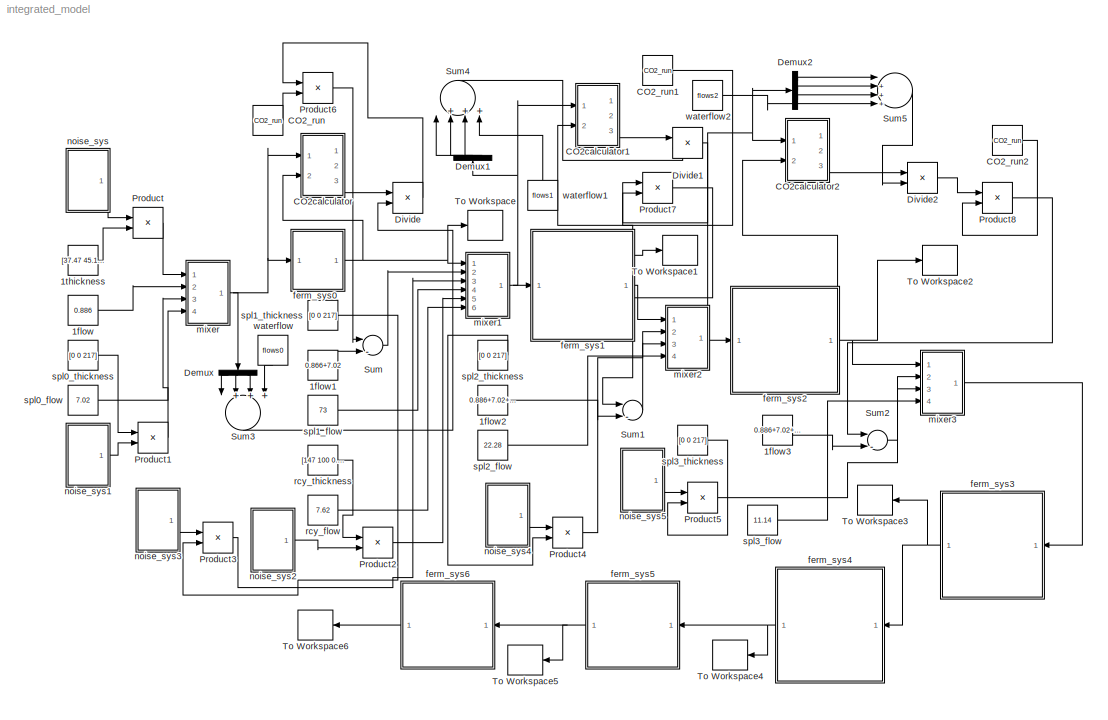
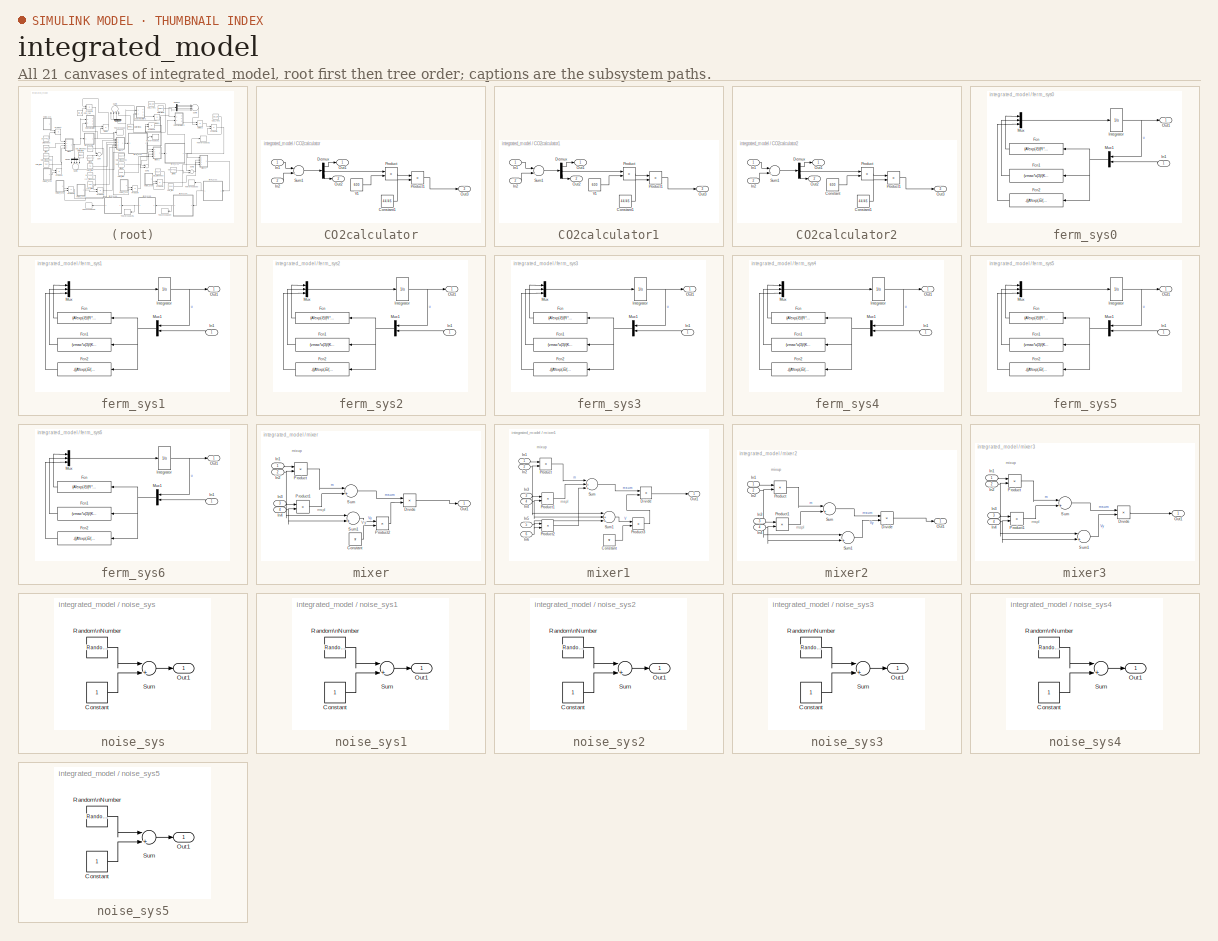
[diagram: thumbnail index - all 21 canvases of the model, root first then tree order]
MODEL integrated_model
KIND model
CONFIG StopFcn = figure\nsubplot(332)\nplot(re0)\nxlabel('steps')\nylabel('concentration(kg/m3)')\nsubplot(334)\nplot(re1)\nxlabel('steps')\nylabel('concentration(kg/m3)')\nsubplot(335)\nplot(re2)\nxlabel('steps')\nylabel('concentration(kg/m3)')\nsubplot(336)\nplot(re3)\nxlabel('steps')\nylabel('concentration(kg/m3)')\nsubplot(337)\nplot(re4)\nxlabel('steps')\nylabel('concentration(kg/m3)')\nsubplot(338)\nplot(re5...<+124ch>
BLOCK [Constant] 1flow
  Value = 0.886
BLOCK [Constant] 1flow1
  Value = 0.866+7.02
BLOCK [Constant] 1flow2
  Value = 0.886+7.02+73+7.62
BLOCK [Constant] 1flow3
  Value = 0.886+7.02+73+7.62+22.28
  VectorParams1D = off
BLOCK [Constant] 1thickness
  Value = [37.47 45.12 1.07]
BLOCK [Constant] CO2_run
  Value = CO2_run
BLOCK [Constant] CO2_run1
  Value = CO2_run
BLOCK [Constant] CO2_run2
  Value = CO2_run
BLOCK [SubSystem] CO2calculator
  MaskHideContents = off
  MinAlgLoopOccurrences = off
  Ports = [2, 3]
  RTWSystemCode = Auto
  TreatAsAtomicUnit = off
BLOCK [Constant] CO2calculator/Constant1
  Value = 44/46
BLOCK [Demux] CO2calculator/Demux
  DisplayOption = bar
  Outputs = 3
  Ports = [1, 3]
BLOCK [Inport] CO2calculator/In1
  IconDisplay = Port number
BLOCK [Inport] CO2calculator/In2
  IconDisplay = Port number
  Port = 2
BLOCK [Outport] CO2calculator/Out1
  BusOutputAsStruct = off
  IconDisplay = Port number
BLOCK [Outport] CO2calculator/Out2
  BusOutputAsStruct = off
  IconDisplay = Port number
  Port = 2
BLOCK [Outport] CO2calculator/Out3
  BusOutputAsStruct = off
  IconDisplay = Port number
  Port = 3
BLOCK [Product] CO2calculator/Product
  InputSameDT = off
  OutDataTypeMode = Inherit via internal rule
  Ports = [2, 1]
  SaturateOnIntegerOverflow = off
BLOCK [Product] CO2calculator/Product1
  InputSameDT = off
  OutDataTypeMode = Inherit via internal rule
  Ports = [2, 1]
  SaturateOnIntegerOverflow = off
BLOCK [Sum] CO2calculator/Sum1
  InputSameDT = off
  Inputs = |-+
  OutDataTypeMode = Inherit via internal rule
  Ports = [2, 1]
  SaturateOnIntegerOverflow = off
BLOCK [Constant] CO2calculator/V1
  Value = 600
BLOCK [SubSystem] CO2calculator1
  MaskHideContents = off
  MinAlgLoopOccurrences = off
  Ports = [2, 3]
  RTWSystemCode = Auto
  TreatAsAtomicUnit = off
BLOCK [Constant] CO2calculator1/Constant1
  Value = 44/46
BLOCK [Demux] CO2calculator1/Demux
  DisplayOption = bar
  Outputs = 3
  Ports = [1, 3]
BLOCK [Inport] CO2calculator1/In1
  IconDisplay = Port number
BLOCK [Inport] CO2calculator1/In2
  IconDisplay = Port number
  Port = 2
BLOCK [Outport] CO2calculator1/Out1
  BusOutputAsStruct = off
  IconDisplay = Port number
BLOCK [Outport] CO2calculator1/Out2
  BusOutputAsStruct = off
  IconDisplay = Port number
  Port = 2
BLOCK [Outport] CO2calculator1/Out3
  BusOutputAsStruct = off
  IconDisplay = Port number
  Port = 3
BLOCK [Product] CO2calculator1/Product
  InputSameDT = off
  OutDataTypeMode = Inherit via internal rule
  Ports = [2, 1]
  SaturateOnIntegerOverflow = off
BLOCK [Product] CO2calculator1/Product1
  InputSameDT = off
  OutDataTypeMode = Inherit via internal rule
  Ports = [2, 1]
  SaturateOnIntegerOverflow = off
BLOCK [Sum] CO2calculator1/Sum1
  InputSameDT = off
  Inputs = |-+
  OutDataTypeMode = Inherit via internal rule
  Ports = [2, 1]
  SaturateOnIntegerOverflow = off
BLOCK [Constant] CO2calculator1/V1
  Value = 600
BLOCK [SubSystem] CO2calculator2
  MaskHideContents = off
  MinAlgLoopOccurrences = off
  Ports = [2, 3]
  RTWSystemCode = Auto
  TreatAsAtomicUnit = off
BLOCK [Constant] CO2calculator2/Constant
  Value = 600
BLOCK [Constant] CO2calculator2/Constant1
  Value = 44/46
BLOCK [Demux] CO2calculator2/Demux
  DisplayOption = bar
  Outputs = 3
  Ports = [1, 3]
BLOCK [Inport] CO2calculator2/In1
  IconDisplay = Port number
BLOCK [Inport] CO2calculator2/In2
  IconDisplay = Port number
  Port = 2
BLOCK [Outport] CO2calculator2/Out1
  BusOutputAsStruct = off
  IconDisplay = Port number
BLOCK [Outport] CO2calculator2/Out2
  BusOutputAsStruct = off
  IconDisplay = Port number
  Port = 2
BLOCK [Outport] CO2calculator2/Out3
  BusOutputAsStruct = off
  IconDisplay = Port number
  Port = 3
BLOCK [Product] CO2calculator2/Product
  InputSameDT = off
  OutDataTypeMode = Inherit via internal rule
  Ports = [2, 1]
  SaturateOnIntegerOverflow = off
BLOCK [Product] CO2calculator2/Product1
  InputSameDT = off
  OutDataTypeMode = Inherit via internal rule
  Ports = [2, 1]
  SaturateOnIntegerOverflow = off
BLOCK [Sum] CO2calculator2/Sum1
  InputSameDT = off
  Inputs = |-+
  OutDataTypeMode = Inherit via internal rule
  Ports = [2, 1]
  SaturateOnIntegerOverflow = off
BLOCK [Demux] Demux
  DisplayOption = bar
  Outputs = 3
  Ports = [1, 3]
BLOCK [Demux] Demux1
  DisplayOption = bar
  Outputs = 3
  Ports = [1, 3]
BLOCK [Demux] Demux2
  DisplayOption = bar
  Outputs = 3
  Ports = [1, 3]
BLOCK [Product] Divide
  InputSameDT = off
  Inputs = */
  OutDataTypeMode = Inherit via internal rule
  OutScaling = 2^-10
  Ports = [2, 1]
  RndMeth = Floor
  SaturateOnIntegerOverflow = off
BLOCK [Product] Divide1
  InputSameDT = off
  Inputs = */
  OutDataTypeMode = Inherit via internal rule
  OutScaling = 2^-10
  Ports = [2, 1]
  RndMeth = Floor
  SaturateOnIntegerOverflow = off
BLOCK [Product] Divide2
  InputSameDT = off
  Inputs = */
  OutDataTypeMode = Inherit via internal rule
  OutScaling = 2^-10
  Ports = [2, 1]
  RndMeth = Floor
  SaturateOnIntegerOverflow = off
BLOCK [Product] Product
  InputSameDT = off
  OutDataTypeMode = Inherit via internal rule
  Ports = [2, 1]
  SaturateOnIntegerOverflow = off
BLOCK [Product] Product1
  InputSameDT = off
  OutDataTypeMode = Inherit via internal rule
  Ports = [2, 1]
  SaturateOnIntegerOverflow = off
BLOCK [Product] Product2
  InputSameDT = off
  OutDataTypeMode = Inherit via internal rule
  Ports = [2, 1]
  SaturateOnIntegerOverflow = off
BLOCK [Product] Product3
  InputSameDT = off
  OutDataTypeMode = Inherit via internal rule
  Ports = [2, 1]
  SaturateOnIntegerOverflow = off
BLOCK [Product] Product4
  InputSameDT = off
  OutDataTypeMode = Inherit via internal rule
  Ports = [2, 1]
  SaturateOnIntegerOverflow = off
BLOCK [Product] Product5
  InputSameDT = off
  OutDataTypeMode = Inherit via internal rule
  Ports = [2, 1]
  SaturateOnIntegerOverflow = off
BLOCK [Product] Product6
  InputSameDT = off
  OutDataTypeMode = Inherit via internal rule
  Ports = [2, 1]
  SaturateOnIntegerOverflow = off
BLOCK [Product] Product7
  InputSameDT = off
  OutDataTypeMode = Inherit via internal rule
  Ports = [2, 1]
  SaturateOnIntegerOverflow = off
BLOCK [Product] Product8
  InputSameDT = off
  OutDataTypeMode = Inherit via internal rule
  Ports = [2, 1]
  SaturateOnIntegerOverflow = off
BLOCK [Sum] Sum
  InputSameDT = off
  Inputs = |-+
  OutDataTypeMode = Inherit via internal rule
  Ports = [2, 1]
  SaturateOnIntegerOverflow = off
BLOCK [Sum] Sum1
  InputSameDT = off
  Inputs = |-+
  OutDataTypeMode = Inherit via internal rule
  Ports = [2, 1]
  SaturateOnIntegerOverflow = off
BLOCK [Sum] Sum2
  InputSameDT = off
  Inputs = |-+
  OutDataTypeMode = Inherit via internal rule
  Ports = [2, 1]
  SaturateOnIntegerOverflow = off
BLOCK [Sum] Sum3
  InputSameDT = off
  Inputs = |++++
  OutDataTypeMode = Inherit via internal rule
  Ports = [4, 1]
  SaturateOnIntegerOverflow = off
BLOCK [Sum] Sum4
  InputSameDT = off
  Inputs = |++++
  OutDataTypeMode = Inherit via internal rule
  Ports = [4, 1]
  SaturateOnIntegerOverflow = off
BLOCK [Sum] Sum5
  InputSameDT = off
  Inputs = |++++
  OutDataTypeMode = Inherit via internal rule
  Ports = [4, 1]
  SaturateOnIntegerOverflow = off
BLOCK [ToWorkspace] To Workspace
  MaxDataPoints = inf
  SampleTime = -1
  SaveFormat = Array
  VariableName = re0
BLOCK [ToWorkspace] To Workspace1
  MaxDataPoints = inf
  SampleTime = -1
  SaveFormat = Array
  VariableName = re1
BLOCK [ToWorkspace] To Workspace2
  MaxDataPoints = inf
  SampleTime = -1
  SaveFormat = Array
  VariableName = re2
BLOCK [ToWorkspace] To Workspace3
  MaxDataPoints = inf
  SampleTime = -1
  SaveFormat = Array
  VariableName = re3
BLOCK [ToWorkspace] To Workspace4
  MaxDataPoints = inf
  SampleTime = -1
  SaveFormat = Array
  VariableName = re4
BLOCK [ToWorkspace] To Workspace5
  MaxDataPoints = inf
  SampleTime = -1
  SaveFormat = Array
  VariableName = re5
BLOCK [ToWorkspace] To Workspace6
  MaxDataPoints = inf
  SampleTime = -1
  SaveFormat = Array
  VariableName = re6
BLOCK [SubSystem] ferm_sys0
  MaskDisplay = image(imread('icon.jpg'));
  MaskHideContents = off
  MaskIconFrame = on
  MaskIconOpaque = on
  MaskIconRotate = none
  MaskIconUnits = autoscale
  MinAlgLoopOccurrences = off
  Ports = [1, 1]
  RTWSystemCode = Auto
  TreatAsAtomicUnit = off
BLOCK [Fcn] ferm_sys0/Fcn
  Expr = (A*exp(-E/(R*(273+Temp0)))*u(3)/(Ks+u(3)+u(3)^2/Ksi)*Kp/(Kp+u(2)+u(2)^2/Kpi))*u(1)+flow1/V0*(u(4)-u(1))
BLOCK [Fcn] ferm_sys0/Fcn1
  Expr = (vmax*u(3)/(Kps+u(3)+u(3)^2/Kpsi)*Kpp/(Kpp+u(2)+u(2)^2/Kppi))*u(1)+flow1/V0*(u(5)-u(2))
BLOCK [Fcn] ferm_sys0/Fcn2
  Expr = -((A*exp(-E/(R*(273+Temp0)))*u(3)/(Ks+u(3)+u(3)^2/Ksi)*Kp/(Kp+u(2)+u(2)^2/Kpi))/Yxs+(vmax*u(3)/(Kps+u(3)+u(3)^2/Kpsi)*Kpp/(Kpp+u(2)+u(2)^2/Kppi))/Yps)*u(1)+flow1/V0*(u(6)-u(3))
BLOCK [Inport] ferm_sys0/In1
  IconDisplay = Port number
BLOCK [Integrator] ferm_sys0/Integrator
  IgnoreLimit = off
  InitialCondition = st
  Ports = [1, 1]
BLOCK [Mux] ferm_sys0/Mux
  DisplayOption = bar
  Inputs = 3
  Ports = [3, 1]
BLOCK [Mux] ferm_sys0/Mux1
  DisplayOption = bar
  Inputs = 2
  Ports = [2, 1]
BLOCK [Outport] ferm_sys0/Out1
  BusOutputAsStruct = off
  IconDisplay = Port number
BLOCK [SubSystem] ferm_sys1
  MaskDisplay = image(imread('icon.jpg'));
  MaskHideContents = off
  MaskIconFrame = on
  MaskIconOpaque = on
  MaskIconRotate = none
  MaskIconUnits = autoscale
  MinAlgLoopOccurrences = off
  Ports = [1, 1]
  RTWSystemCode = Auto
  TreatAsAtomicUnit = off
BLOCK [Fcn] ferm_sys1/Fcn
  Expr = (A*exp(-E/(R*(273+Temp1)))*u(3)/(Ks+u(3)+u(3)^2/Ksi)*Kp/(Kp+u(2)+u(2)^2/Kpi))*u(1)+flow1/V1*(u(4)-u(1))
BLOCK [Fcn] ferm_sys1/Fcn1
  Expr = (vmax*u(3)/(Kps+u(3)+u(3)^2/Kpsi)*Kpp/(Kpp+u(2)+u(2)^2/Kppi))*u(1)+flow1/V1*(u(5)-u(2))
BLOCK [Fcn] ferm_sys1/Fcn2
  Expr = -((A*exp(-E/(R*(273+Temp1)))*u(3)/(Ks+u(3)+u(3)^2/Ksi)*Kp/(Kp+u(2)+u(2)^2/Kpi))/Yxs+(vmax*u(3)/(Kps+u(3)+u(3)^2/Kpsi)*Kpp/(Kpp+u(2)+u(2)^2/Kppi))/Yps)*u(1)+flow1/V1*(u(6)-u(3))
BLOCK [Inport] ferm_sys1/In1
  IconDisplay = Port number
BLOCK [Integrator] ferm_sys1/Integrator
  IgnoreLimit = off
  InitialCondition = st
  Ports = [1, 1]
BLOCK [Mux] ferm_sys1/Mux
  DisplayOption = bar
  Inputs = 3
  Ports = [3, 1]
BLOCK [Mux] ferm_sys1/Mux1
  DisplayOption = bar
  Inputs = 2
  Ports = [2, 1]
BLOCK [Outport] ferm_sys1/Out1
  BusOutputAsStruct = off
  IconDisplay = Port number
BLOCK [SubSystem] ferm_sys2
  MaskDisplay = image(imread('icon.jpg'));
  MaskHideContents = off
  MaskIconFrame = on
  MaskIconOpaque = on
  MaskIconRotate = none
  MaskIconUnits = autoscale
  MinAlgLoopOccurrences = off
  Ports = [1, 1]
  RTWSystemCode = Auto
  TreatAsAtomicUnit = off
BLOCK [Fcn] ferm_sys2/Fcn
  Expr = (A*exp(-E/(R*(273+Temp2)))*u(3)/(Ks+u(3)+u(3)^2/Ksi)*Kp/(Kp+u(2)+u(2)^2/Kpi))*u(1)+flow1/V1*(u(4)-u(1))
BLOCK [Fcn] ferm_sys2/Fcn1
  Expr = (vmax*u(3)/(Kps+u(3)+u(3)^2/Kpsi)*Kpp/(Kpp+u(2)+u(2)^2/Kppi))*u(1)+flow1/V1*(u(5)-u(2))
BLOCK [Fcn] ferm_sys2/Fcn2
  Expr = -((A*exp(-E/(R*(273+Temp2)))*u(3)/(Ks+u(3)+u(3)^2/Ksi)*Kp/(Kp+u(2)+u(2)^2/Kpi))/Yxs+(vmax*u(3)/(Kps+u(3)+u(3)^2/Kpsi)*Kpp/(Kpp+u(2)+u(2)^2/Kppi))/Yps)*u(1)+flow1/V1*(u(6)-u(3))
BLOCK [Inport] ferm_sys2/In1
  IconDisplay = Port number
BLOCK [Integrator] ferm_sys2/Integrator
  IgnoreLimit = off
  InitialCondition = st
  Ports = [1, 1]
BLOCK [Mux] ferm_sys2/Mux
  DisplayOption = bar
  Inputs = 3
  Ports = [3, 1]
BLOCK [Mux] ferm_sys2/Mux1
  DisplayOption = bar
  Inputs = 2
  Ports = [2, 1]
BLOCK [Outport] ferm_sys2/Out1
  BusOutputAsStruct = off
  IconDisplay = Port number
BLOCK [SubSystem] ferm_sys3
  MaskDisplay = image(imread('icon.jpg'));
  MaskHideContents = off
  MaskIconFrame = on
  MaskIconOpaque = on
  MaskIconRotate = none
  MaskIconUnits = autoscale
  MinAlgLoopOccurrences = off
  Ports = [1, 1]
  RTWSystemCode = Auto
  TreatAsAtomicUnit = off
BLOCK [Fcn] ferm_sys3/Fcn
  Expr = (A*exp(-E/(R*(273+Temp3)))*u(3)/(Ks+u(3)+u(3)^2/Ksi)*Kp/(Kp+u(2)+u(2)^2/Kpi))*u(1)+flow1/V1*(u(4)-u(1))
BLOCK [Fcn] ferm_sys3/Fcn1
  Expr = (vmax*u(3)/(Kps+u(3)+u(3)^2/Kpsi)*Kpp/(Kpp+u(2)+u(2)^2/Kppi))*u(1)+flow1/V1*(u(5)-u(2))
BLOCK [Fcn] ferm_sys3/Fcn2
  Expr = -((A*exp(-E/(R*(273+Temp3)))*u(3)/(Ks+u(3)+u(3)^2/Ksi)*Kp/(Kp+u(2)+u(2)^2/Kpi))/Yxs+(vmax*u(3)/(Kps+u(3)+u(3)^2/Kpsi)*Kpp/(Kpp+u(2)+u(2)^2/Kppi))/Yps)*u(1)+flow1/V1*(u(6)-u(3))
BLOCK [Inport] ferm_sys3/In1
  IconDisplay = Port number
BLOCK [Integrator] ferm_sys3/Integrator
  IgnoreLimit = off
  InitialCondition = st
  Ports = [1, 1]
BLOCK [Mux] ferm_sys3/Mux
  DisplayOption = bar
  Inputs = 3
  Ports = [3, 1]
BLOCK [Mux] ferm_sys3/Mux1
  DisplayOption = bar
  Inputs = 2
  Ports = [2, 1]
BLOCK [Outport] ferm_sys3/Out1
  BusOutputAsStruct = off
  IconDisplay = Port number
BLOCK [SubSystem] ferm_sys4
  MaskDisplay = image(imread('icon.jpg'));
  MaskHideContents = off
  MaskIconFrame = on
  MaskIconOpaque = on
  MaskIconRotate = none
  MaskIconUnits = autoscale
  MinAlgLoopOccurrences = off
  Ports = [1, 1]
  RTWSystemCode = Auto
  TreatAsAtomicUnit = off
BLOCK [Fcn] ferm_sys4/Fcn
  Expr = (A*exp(-E/(R*(273+Temp4)))*u(3)/(Ks+u(3)+u(3)^2/Ksi)*Kp/(Kp+u(2)+u(2)^2/Kpi))*u(1)+flow1/V1*(u(4)-u(1))
BLOCK [Fcn] ferm_sys4/Fcn1
  Expr = (vmax*u(3)/(Kps+u(3)+u(3)^2/Kpsi)*Kpp/(Kpp+u(2)+u(2)^2/Kppi))*u(1)+flow1/V1*(u(5)-u(2))
BLOCK [Fcn] ferm_sys4/Fcn2
  Expr = -((A*exp(-E/(R*(273+Temp4)))*u(3)/(Ks+u(3)+u(3)^2/Ksi)*Kp/(Kp+u(2)+u(2)^2/Kpi))/Yxs+(vmax*u(3)/(Kps+u(3)+u(3)^2/Kpsi)*Kpp/(Kpp+u(2)+u(2)^2/Kppi))/Yps)*u(1)+flow1/V1*(u(6)-u(3))
BLOCK [Inport] ferm_sys4/In1
  IconDisplay = Port number
BLOCK [Integrator] ferm_sys4/Integrator
  IgnoreLimit = off
  InitialCondition = st
  Ports = [1, 1]
BLOCK [Mux] ferm_sys4/Mux
  DisplayOption = bar
  Inputs = 3
  Ports = [3, 1]
BLOCK [Mux] ferm_sys4/Mux1
  DisplayOption = bar
  Inputs = 2
  Ports = [2, 1]
BLOCK [Outport] ferm_sys4/Out1
  BusOutputAsStruct = off
  IconDisplay = Port number
BLOCK [SubSystem] ferm_sys5
  MaskDisplay = image(imread('icon.jpg'));
  MaskHideContents = off
  MaskIconFrame = on
  MaskIconOpaque = on
  MaskIconRotate = none
  MaskIconUnits = autoscale
  MinAlgLoopOccurrences = off
  Ports = [1, 1]
  RTWSystemCode = Auto
  TreatAsAtomicUnit = off
BLOCK [Fcn] ferm_sys5/Fcn
  Expr = (A*exp(-E/(R*(273+Temp5)))*u(3)/(Ks+u(3)+u(3)^2/Ksi)*Kp/(Kp+u(2)+u(2)^2/Kpi))*u(1)+flow1/V5*(u(4)-u(1))
BLOCK [Fcn] ferm_sys5/Fcn1
  Expr = (vmax*u(3)/(Kps+u(3)+u(3)^2/Kpsi)*Kpp/(Kpp+u(2)+u(2)^2/Kppi))*u(1)+flow1/V5*(u(5)-u(2))
BLOCK [Fcn] ferm_sys5/Fcn2
  Expr = -((A*exp(-E/(R*(273+Temp5)))*u(3)/(Ks+u(3)+u(3)^2/Ksi)*Kp/(Kp+u(2)+u(2)^2/Kpi))/Yxs+(vmax*u(3)/(Kps+u(3)+u(3)^2/Kpsi)*Kpp/(Kpp+u(2)+u(2)^2/Kppi))/Yps)*u(1)+flow1/V5*(u(6)-u(3))
BLOCK [Inport] ferm_sys5/In1
  IconDisplay = Port number
BLOCK [Integrator] ferm_sys5/Integrator
  IgnoreLimit = off
  InitialCondition = st
  Ports = [1, 1]
BLOCK [Mux] ferm_sys5/Mux
  DisplayOption = bar
  Inputs = 3
  Ports = [3, 1]
BLOCK [Mux] ferm_sys5/Mux1
  DisplayOption = bar
  Inputs = 2
  Ports = [2, 1]
BLOCK [Outport] ferm_sys5/Out1
  BusOutputAsStruct = off
  IconDisplay = Port number
BLOCK [SubSystem] ferm_sys6
  MaskDisplay = image(imread('icon.jpg'));
  MaskHideContents = off
  MaskIconFrame = on
  MaskIconOpaque = on
  MaskIconRotate = none
  MaskIconUnits = autoscale
  MinAlgLoopOccurrences = off
  Ports = [1, 1]
  RTWSystemCode = Auto
  TreatAsAtomicUnit = off
BLOCK [Fcn] ferm_sys6/Fcn
  Expr = (A*exp(-E/(R*(273+Temp6)))*u(3)/(Ks+u(3)+u(3)^2/Ksi)*Kp/(Kp+u(2)+u(2)^2/Kpi))*u(1)+flow1/V5*(u(4)-u(1))
BLOCK [Fcn] ferm_sys6/Fcn1
  Expr = (vmax*u(3)/(Kps+u(3)+u(3)^2/Kpsi)*Kpp/(Kpp+u(2)+u(2)^2/Kppi))*u(1)+flow1/V5*(u(5)-u(2))
BLOCK [Fcn] ferm_sys6/Fcn2
  Expr = -((A*exp(-E/(R*(273+Temp6)))*u(3)/(Ks+u(3)+u(3)^2/Ksi)*Kp/(Kp+u(2)+u(2)^2/Kpi))/Yxs+(vmax*u(3)/(Kps+u(3)+u(3)^2/Kpsi)*Kpp/(Kpp+u(2)+u(2)^2/Kppi))/Yps)*u(1)+flow1/V5*(u(6)-u(3))
BLOCK [Inport] ferm_sys6/In1
  IconDisplay = Port number
BLOCK [Integrator] ferm_sys6/Integrator
  IgnoreLimit = off
  InitialCondition = st
  Ports = [1, 1]
BLOCK [Mux] ferm_sys6/Mux
  DisplayOption = bar
  Inputs = 3
  Ports = [3, 1]
BLOCK [Mux] ferm_sys6/Mux1
  DisplayOption = bar
  Inputs = 2
  Ports = [2, 1]
BLOCK [Outport] ferm_sys6/Out1
  BusOutputAsStruct = off
  IconDisplay = Port number
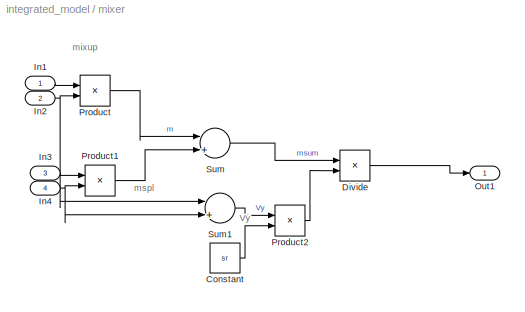
BLOCK [SubSystem] mixer
  MaskHideContents = off
  MinAlgLoopOccurrences = off
  Ports = [4, 1]
  RTWSystemCode = Auto
  TreatAsAtomicUnit = off
BLOCK [Constant] mixer/Constant
  Value = sr
BLOCK [Product] mixer/Divide
  InputSameDT = off
  Inputs = */
  OutDataTypeMode = Inherit via internal rule
  OutScaling = 2^-10
  Ports = [2, 1]
  RndMeth = Floor
  SaturateOnIntegerOverflow = off
BLOCK [Inport] mixer/In1
  IconDisplay = Port number
BLOCK [Inport] mixer/In2
  IconDisplay = Port number
  Port = 2
BLOCK [Inport] mixer/In3
  IconDisplay = Port number
  Port = 3
BLOCK [Inport] mixer/In4
  IconDisplay = Port number
  Port = 4
BLOCK [Outport] mixer/Out1
  BusOutputAsStruct = off
  IconDisplay = Port number
BLOCK [Product] mixer/Product
  InputSameDT = off
  OutDataTypeMode = Inherit via internal rule
  Ports = [2, 1]
  SaturateOnIntegerOverflow = off
BLOCK [Product] mixer/Product1
  InputSameDT = off
  OutDataTypeMode = Inherit via internal rule
  Ports = [2, 1]
  SaturateOnIntegerOverflow = off
BLOCK [Product] mixer/Product2
  InputSameDT = off
  OutDataTypeMode = Inherit via internal rule
  Ports = [2, 1]
  SaturateOnIntegerOverflow = off
BLOCK [Sum] mixer/Sum
  InputSameDT = off
  Inputs = |++
  OutDataTypeMode = Inherit via internal rule
  Ports = [2, 1]
  SaturateOnIntegerOverflow = off
BLOCK [Sum] mixer/Sum1
  InputSameDT = off
  Inputs = |++
  OutDataTypeMode = Inherit via internal rule
  Ports = [2, 1]
  SaturateOnIntegerOverflow = off
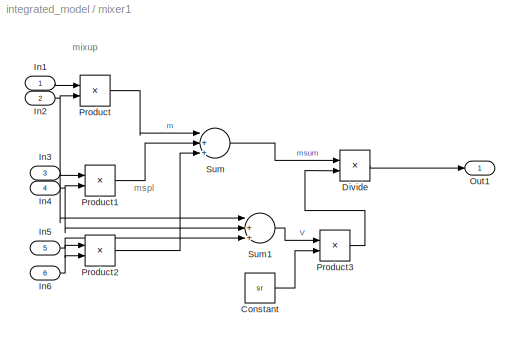
BLOCK [SubSystem] mixer1
  MaskHideContents = off
  MinAlgLoopOccurrences = off
  Ports = [6, 1]
  RTWSystemCode = Auto
  TreatAsAtomicUnit = off
BLOCK [Constant] mixer1/Constant
  Value = sr
BLOCK [Product] mixer1/Divide
  InputSameDT = off
  Inputs = */
  OutDataTypeMode = Inherit via internal rule
  OutScaling = 2^-10
  Ports = [2, 1]
  RndMeth = Floor
  SaturateOnIntegerOverflow = off
BLOCK [Inport] mixer1/In1
  IconDisplay = Port number
BLOCK [Inport] mixer1/In2
  IconDisplay = Port number
  Port = 2
BLOCK [Inport] mixer1/In3
  IconDisplay = Port number
  Port = 3
BLOCK [Inport] mixer1/In4
  IconDisplay = Port number
  Port = 4
BLOCK [Inport] mixer1/In5
  IconDisplay = Port number
  Port = 5
BLOCK [Inport] mixer1/In6
  IconDisplay = Port number
  Port = 6
BLOCK [Outport] mixer1/Out1
  BusOutputAsStruct = off
  IconDisplay = Port number
BLOCK [Product] mixer1/Product
  InputSameDT = off
  OutDataTypeMode = Inherit via internal rule
  Ports = [2, 1]
  SaturateOnIntegerOverflow = off
BLOCK [Product] mixer1/Product1
  InputSameDT = off
  OutDataTypeMode = Inherit via internal rule
  Ports = [2, 1]
  SaturateOnIntegerOverflow = off
BLOCK [Product] mixer1/Product2
  InputSameDT = off
  OutDataTypeMode = Inherit via internal rule
  Ports = [2, 1]
  SaturateOnIntegerOverflow = off
BLOCK [Product] mixer1/Product3
  InputSameDT = off
  OutDataTypeMode = Inherit via internal rule
  Ports = [2, 1]
  SaturateOnIntegerOverflow = off
BLOCK [Sum] mixer1/Sum
  InputSameDT = off
  Inputs = |+++
  OutDataTypeMode = Inherit via internal rule
  Ports = [3, 1]
  SaturateOnIntegerOverflow = off
BLOCK [Sum] mixer1/Sum1
  InputSameDT = off
  Inputs = |+++
  OutDataTypeMode = Inherit via internal rule
  Ports = [3, 1]
  SaturateOnIntegerOverflow = off
BLOCK [SubSystem] mixer2
  MaskHideContents = off
  MinAlgLoopOccurrences = off
  Ports = [4, 1]
  RTWSystemCode = Auto
  TreatAsAtomicUnit = off
BLOCK [Product] mixer2/Divide
  InputSameDT = off
  Inputs = */
  OutDataTypeMode = Inherit via internal rule
  OutScaling = 2^-10
  Ports = [2, 1]
  RndMeth = Floor
  SaturateOnIntegerOverflow = off
BLOCK [Inport] mixer2/In1
  IconDisplay = Port number
BLOCK [Inport] mixer2/In2
  IconDisplay = Port number
  Port = 2
BLOCK [Inport] mixer2/In3
  IconDisplay = Port number
  Port = 3
BLOCK [Inport] mixer2/In4
  IconDisplay = Port number
  Port = 4
BLOCK [Outport] mixer2/Out1
  BusOutputAsStruct = off
  IconDisplay = Port number
BLOCK [Product] mixer2/Product
  InputSameDT = off
  OutDataTypeMode = Inherit via internal rule
  Ports = [2, 1]
  SaturateOnIntegerOverflow = off
BLOCK [Product] mixer2/Product1
  InputSameDT = off
  OutDataTypeMode = Inherit via internal rule
  Ports = [2, 1]
  SaturateOnIntegerOverflow = off
BLOCK [Sum] mixer2/Sum
  InputSameDT = off
  Inputs = |++
  OutDataTypeMode = Inherit via internal rule
  Ports = [2, 1]
  SaturateOnIntegerOverflow = off
BLOCK [Sum] mixer2/Sum1
  InputSameDT = off
  Inputs = |++
  OutDataTypeMode = Inherit via internal rule
  Ports = [2, 1]
  SaturateOnIntegerOverflow = off
BLOCK [SubSystem] mixer3
  MaskHideContents = off
  MinAlgLoopOccurrences = off
  Ports = [4, 1]
  RTWSystemCode = Auto
  TreatAsAtomicUnit = off
BLOCK [Product] mixer3/Divide
  InputSameDT = off
  Inputs = */
  OutDataTypeMode = Inherit via internal rule
  OutScaling = 2^-10
  Ports = [2, 1]
  RndMeth = Floor
  SaturateOnIntegerOverflow = off
BLOCK [Inport] mixer3/In1
  IconDisplay = Port number
BLOCK [Inport] mixer3/In2
  IconDisplay = Port number
  Port = 2
BLOCK [Inport] mixer3/In3
  IconDisplay = Port number
  Port = 3
BLOCK [Inport] mixer3/In4
  IconDisplay = Port number
  Port = 4
BLOCK [Outport] mixer3/Out1
  BusOutputAsStruct = off
  IconDisplay = Port number
BLOCK [Product] mixer3/Product
  InputSameDT = off
  OutDataTypeMode = Inherit via internal rule
  Ports = [2, 1]
  SaturateOnIntegerOverflow = off
BLOCK [Product] mixer3/Product1
  InputSameDT = off
  OutDataTypeMode = Inherit via internal rule
  Ports = [2, 1]
  SaturateOnIntegerOverflow = off
BLOCK [Sum] mixer3/Sum
  InputSameDT = off
  Inputs = |++
  OutDataTypeMode = Inherit via internal rule
  Ports = [2, 1]
  SaturateOnIntegerOverflow = off
BLOCK [Sum] mixer3/Sum1
  InputSameDT = off
  Inputs = |++
  OutDataTypeMode = Inherit via internal rule
  Ports = [2, 1]
  SaturateOnIntegerOverflow = off
BLOCK [SubSystem] noise_sys
  MaskHideContents = off
  MinAlgLoopOccurrences = off
  Ports = [0, 1]
  RTWSystemCode = Auto
  TreatAsAtomicUnit = off
BLOCK [Constant] noise_sys/Constant
BLOCK [Outport] noise_sys/Out1
  BusOutputAsStruct = off
  IconDisplay = Port number
BLOCK [RandomNumber] noise_sys/Random\nNumber
  SampleTime = 0
  Variance = 0.12
BLOCK [Sum] noise_sys/Sum
  InputSameDT = off
  Inputs = |++
  OutDataTypeMode = Inherit via internal rule
  Ports = [2, 1]
  SaturateOnIntegerOverflow = off
BLOCK [SubSystem] noise_sys1
  MaskHideContents = off
  MinAlgLoopOccurrences = off
  Ports = [0, 1]
  RTWSystemCode = Auto
  TreatAsAtomicUnit = off
BLOCK [Constant] noise_sys1/Constant
BLOCK [Outport] noise_sys1/Out1
  BusOutputAsStruct = off
  IconDisplay = Port number
BLOCK [RandomNumber] noise_sys1/Random\nNumber
  SampleTime = 0
  Variance = 0.12
BLOCK [Sum] noise_sys1/Sum
  InputSameDT = off
  Inputs = |++
  OutDataTypeMode = Inherit via internal rule
  Ports = [2, 1]
  SaturateOnIntegerOverflow = off
BLOCK [SubSystem] noise_sys2
  MaskHideContents = off
  MinAlgLoopOccurrences = off
  Ports = [0, 1]
  RTWSystemCode = Auto
  TreatAsAtomicUnit = off
BLOCK [Constant] noise_sys2/Constant
BLOCK [Outport] noise_sys2/Out1
  BusOutputAsStruct = off
  IconDisplay = Port number
BLOCK [RandomNumber] noise_sys2/Random\nNumber
  SampleTime = 0
  Variance = 0.21
BLOCK [Sum] noise_sys2/Sum
  InputSameDT = off
  Inputs = |++
  OutDataTypeMode = Inherit via internal rule
  Ports = [2, 1]
  SaturateOnIntegerOverflow = off
BLOCK [SubSystem] noise_sys3
  MaskHideContents = off
  MinAlgLoopOccurrences = off
  Ports = [0, 1]
  RTWSystemCode = Auto
  TreatAsAtomicUnit = off
BLOCK [Constant] noise_sys3/Constant
BLOCK [Outport] noise_sys3/Out1
  BusOutputAsStruct = off
  IconDisplay = Port number
BLOCK [RandomNumber] noise_sys3/Random\nNumber
  SampleTime = 0
  Variance = 0.12
BLOCK [Sum] noise_sys3/Sum
  InputSameDT = off
  Inputs = |++
  OutDataTypeMode = Inherit via internal rule
  Ports = [2, 1]
  SaturateOnIntegerOverflow = off
BLOCK [SubSystem] noise_sys4
  MaskHideContents = off
  MinAlgLoopOccurrences = off
  Ports = [0, 1]
  RTWSystemCode = Auto
  TreatAsAtomicUnit = off
BLOCK [Constant] noise_sys4/Constant
BLOCK [Outport] noise_sys4/Out1
  BusOutputAsStruct = off
  IconDisplay = Port number
BLOCK [RandomNumber] noise_sys4/Random\nNumber
  SampleTime = 0
  Variance = 0.21
BLOCK [Sum] noise_sys4/Sum
  InputSameDT = off
  Inputs = |++
  OutDataTypeMode = Inherit via internal rule
  Ports = [2, 1]
  SaturateOnIntegerOverflow = off
BLOCK [SubSystem] noise_sys5
  MaskHideContents = off
  MinAlgLoopOccurrences = off
  Ports = [0, 1]
  RTWSystemCode = Auto
  TreatAsAtomicUnit = off
BLOCK [Constant] noise_sys5/Constant
BLOCK [Outport] noise_sys5/Out1
  BusOutputAsStruct = off
  IconDisplay = Port number
BLOCK [RandomNumber] noise_sys5/Random\nNumber
  SampleTime = 0
  Variance = 0.21
BLOCK [Sum] noise_sys5/Sum
  InputSameDT = off
  Inputs = |++
  OutDataTypeMode = Inherit via internal rule
  Ports = [2, 1]
  SaturateOnIntegerOverflow = off
BLOCK [Constant] rcy_flow
  Value = 7.62
BLOCK [Constant] rcy_thickness
  Value = [147 100 0.5]
BLOCK [Constant] spl0_flow
  Value = 7.02
BLOCK [Constant] spl0_thickness
  Value = [0 0 217]
BLOCK [Constant] spl1_flow
  Value = 73
BLOCK [Constant] spl1_thickness
  Value = [0 0 217]
BLOCK [Constant] spl2_flow
  Value = 22.28
BLOCK [Constant] spl2_thickness
  Value = [0 0 217]
BLOCK [Constant] spl3_flow
  Value = 11.14
BLOCK [Constant] spl3_thickness
  Value = [0 0 217]
BLOCK [Constant] waterflow
  Value = flows0
BLOCK [Constant] waterflow1
  Value = flows1
BLOCK [Constant] waterflow2
  Value = flows2
ANNOTATION mixer: Vy
ANNOTATION mixer: mixup
ANNOTATION mixer: mspl
ANNOTATION mixer1: mixup
ANNOTATION mixer1: mspl
ANNOTATION mixer2: mixup
ANNOTATION mixer2: mspl
ANNOTATION mixer3: mixup
ANNOTATION mixer3: mspl
LINE 1flow1:1 -> Sum:2
LINE 1flow2:1 -> Sum1:2
LINE 1flow3:1 -> Sum2:2
LINE 1flow:1 -> mixer:2
LINE 1thickness:1 -> Product:2
LINE CO2_run1:1 -> Product7:2
LINE CO2_run2:1 -> Product8:2
LINE CO2_run:1 -> Product6:2
LINE CO2calculator/Constant1:1 -> CO2calculator/Product1:2
LINE CO2calculator/Demux:1 -> CO2calculator/Out1:1
LINE CO2calculator/Demux:2 -> CO2calculator/Product:1
LINE CO2calculator/Demux:3 -> CO2calculator/Out2:1
LINE CO2calculator/In1:1 -> CO2calculator/Sum1:1
LINE CO2calculator/In2:1 -> CO2calculator/Sum1:2
LINE CO2calculator/Product1:1 -> CO2calculator/Out3:1
LINE CO2calculator/Product:1 -> CO2calculator/Product1:1
LINE CO2calculator/Sum1:1 -> CO2calculator/Demux:1
LINE CO2calculator/V1:1 -> CO2calculator/Product:2
LINE CO2calculator1/Constant1:1 -> CO2calculator1/Product1:2
LINE CO2calculator1/Demux:1 -> CO2calculator1/Out1:1
LINE CO2calculator1/Demux:2 -> CO2calculator1/Product:1
LINE CO2calculator1/Demux:3 -> CO2calculator1/Out2:1
LINE CO2calculator1/In1:1 -> CO2calculator1/Sum1:1
LINE CO2calculator1/In2:1 -> CO2calculator1/Sum1:2
LINE CO2calculator1/Product1:1 -> CO2calculator1/Out3:1
LINE CO2calculator1/Product:1 -> CO2calculator1/Product1:1
LINE CO2calculator1/Sum1:1 -> CO2calculator1/Demux:1
LINE CO2calculator1/V1:1 -> CO2calculator1/Product:2
LINE CO2calculator1:3 -> Divide1:1
LINE CO2calculator2/Constant1:1 -> CO2calculator2/Product1:2
LINE CO2calculator2/Constant:1 -> CO2calculator2/Product:2
LINE CO2calculator2/Demux:1 -> CO2calculator2/Out1:1
LINE CO2calculator2/Demux:2 -> CO2calculator2/Product:1
LINE CO2calculator2/Demux:3 -> CO2calculator2/Out2:1
LINE CO2calculator2/In1:1 -> CO2calculator2/Sum1:1
LINE CO2calculator2/In2:1 -> CO2calculator2/Sum1:2
LINE CO2calculator2/Product1:1 -> CO2calculator2/Out3:1
LINE CO2calculator2/Product:1 -> CO2calculator2/Product1:1
LINE CO2calculator2/Sum1:1 -> CO2calculator2/Demux:1
LINE CO2calculator2:3 -> Divide2:1
LINE CO2calculator:3 -> Divide:1
LINE Demux1:1 -> Sum4:1
LINE Demux1:2 -> Sum4:2
LINE Demux1:3 -> Sum4:3
LINE Demux2:1 -> Sum5:1
LINE Demux2:2 -> Sum5:2
LINE Demux2:3 -> Sum5:3
LINE Demux:1 -> Sum3:1
LINE Demux:2 -> Sum3:2
LINE Demux:3 -> Sum3:3
LINE Divide1:1 -> Product7:1
LINE Divide2:1 -> Product8:1
LINE Divide:1 -> Product6:1
LINE Product1:1 -> mixer:3
LINE Product2:1 -> mixer1:5
LINE Product3:1 -> mixer1:3
LINE Product4:1 -> mixer2:3
LINE Product5:1 -> mixer3:3
LINE Product6:1 -> Sum:1
LINE Product7:1 -> Sum1:1
LINE Product8:1 -> Sum2:1
LINE Product:1 -> mixer:1
LINE Sum1:1 -> mixer2:2
LINE Sum2:1 -> mixer3:2
LINE Sum3:1 -> Divide:2
LINE Sum4:1 -> Divide1:2
LINE Sum5:1 -> Divide2:2
LINE Sum:1 -> mixer1:2
LINE ferm_sys0/Fcn1:1 -> ferm_sys0/Mux:2
LINE ferm_sys0/Fcn2:1 -> ferm_sys0/Mux:3
LINE ferm_sys0/Fcn:1 -> ferm_sys0/Mux:1
LINE ferm_sys0/In1:1 -> ferm_sys0/Mux1:2
NET ferm_sys0/Integrator:1 -> ferm_sys0/Mux1:1, ferm_sys0/Out1:1
NET ferm_sys0/Mux1:1 -> ferm_sys0/Fcn1:1, ferm_sys0/Fcn2:1, ferm_sys0/Fcn:1
LINE ferm_sys0/Mux:1 -> ferm_sys0/Integrator:1
NET ferm_sys0:1 -> CO2calculator:2, To Workspace:1, mixer1:1
LINE ferm_sys1/Fcn1:1 -> ferm_sys1/Mux:2
LINE ferm_sys1/Fcn2:1 -> ferm_sys1/Mux:3
LINE ferm_sys1/Fcn:1 -> ferm_sys1/Mux:1
LINE ferm_sys1/In1:1 -> ferm_sys1/Mux1:2
NET ferm_sys1/Integrator:1 -> ferm_sys1/Mux1:1, ferm_sys1/Out1:1
NET ferm_sys1/Mux1:1 -> ferm_sys1/Fcn1:1, ferm_sys1/Fcn2:1, ferm_sys1/Fcn:1
LINE ferm_sys1/Mux:1 -> ferm_sys1/Integrator:1
NET ferm_sys1:1 -> CO2calculator1:2, To Workspace1:1, mixer2:1
LINE ferm_sys2/Fcn1:1 -> ferm_sys2/Mux:2
LINE ferm_sys2/Fcn2:1 -> ferm_sys2/Mux:3
LINE ferm_sys2/Fcn:1 -> ferm_sys2/Mux:1
LINE ferm_sys2/In1:1 -> ferm_sys2/Mux1:2
NET ferm_sys2/Integrator:1 -> ferm_sys2/Mux1:1, ferm_sys2/Out1:1
NET ferm_sys2/Mux1:1 -> ferm_sys2/Fcn1:1, ferm_sys2/Fcn2:1, ferm_sys2/Fcn:1
LINE ferm_sys2/Mux:1 -> ferm_sys2/Integrator:1
NET ferm_sys2:1 -> CO2calculator2:2, To Workspace2:1, mixer3:1
LINE ferm_sys3/Fcn1:1 -> ferm_sys3/Mux:2
LINE ferm_sys3/Fcn2:1 -> ferm_sys3/Mux:3
LINE ferm_sys3/Fcn:1 -> ferm_sys3/Mux:1
LINE ferm_sys3/In1:1 -> ferm_sys3/Mux1:2
NET ferm_sys3/Integrator:1 -> ferm_sys3/Mux1:1, ferm_sys3/Out1:1
NET ferm_sys3/Mux1:1 -> ferm_sys3/Fcn1:1, ferm_sys3/Fcn2:1, ferm_sys3/Fcn:1
LINE ferm_sys3/Mux:1 -> ferm_sys3/Integrator:1
NET ferm_sys3:1 -> To Workspace3:1, ferm_sys4:1
LINE ferm_sys4/Fcn1:1 -> ferm_sys4/Mux:2
LINE ferm_sys4/Fcn2:1 -> ferm_sys4/Mux:3
LINE ferm_sys4/Fcn:1 -> ferm_sys4/Mux:1
LINE ferm_sys4/In1:1 -> ferm_sys4/Mux1:2
NET ferm_sys4/Integrator:1 -> ferm_sys4/Mux1:1, ferm_sys4/Out1:1
NET ferm_sys4/Mux1:1 -> ferm_sys4/Fcn1:1, ferm_sys4/Fcn2:1, ferm_sys4/Fcn:1
LINE ferm_sys4/Mux:1 -> ferm_sys4/Integrator:1
NET ferm_sys4:1 -> To Workspace4:1, ferm_sys5:1
LINE ferm_sys5/Fcn1:1 -> ferm_sys5/Mux:2
LINE ferm_sys5/Fcn2:1 -> ferm_sys5/Mux:3
LINE ferm_sys5/Fcn:1 -> ferm_sys5/Mux:1
LINE ferm_sys5/In1:1 -> ferm_sys5/Mux1:2
NET ferm_sys5/Integrator:1 -> ferm_sys5/Mux1:1, ferm_sys5/Out1:1
NET ferm_sys5/Mux1:1 -> ferm_sys5/Fcn1:1, ferm_sys5/Fcn2:1, ferm_sys5/Fcn:1
LINE ferm_sys5/Mux:1 -> ferm_sys5/Integrator:1
NET ferm_sys5:1 -> To Workspace5:1, ferm_sys6:1
LINE ferm_sys6/Fcn1:1 -> ferm_sys6/Mux:2
LINE ferm_sys6/Fcn2:1 -> ferm_sys6/Mux:3
LINE ferm_sys6/Fcn:1 -> ferm_sys6/Mux:1
LINE ferm_sys6/In1:1 -> ferm_sys6/Mux1:2
NET ferm_sys6/Integrator:1 -> ferm_sys6/Mux1:1, ferm_sys6/Out1:1
NET ferm_sys6/Mux1:1 -> ferm_sys6/Fcn1:1, ferm_sys6/Fcn2:1, ferm_sys6/Fcn:1
LINE ferm_sys6/Mux:1 -> ferm_sys6/Integrator:1
LINE ferm_sys6:1 -> To Workspace6:1
LINE mixer/Constant:1 -> mixer/Product2:2
LINE mixer/Divide:1 -> mixer/Out1:1
LINE mixer/In1:1 -> mixer/Product:1
NET mixer/In2:1 -> mixer/Product:2, mixer/Sum1:1
LINE mixer/In3:1 -> mixer/Product1:1
NET mixer/In4:1 -> mixer/Product1:2, mixer/Sum1:2
LINE mixer/Product1:1 -> mixer/Sum:2
LINE mixer/Product2:1 -> mixer/Divide:2
LINE mixer/Product:1 -> mixer/Sum:1
LINE mixer/Sum1:1 -> mixer/Product2:1
LINE mixer/Sum:1 -> mixer/Divide:1
LINE mixer1/Constant:1 -> mixer1/Product3:2
LINE mixer1/Divide:1 -> mixer1/Out1:1
LINE mixer1/In1:1 -> mixer1/Product:1
NET mixer1/In2:1 -> mixer1/Product:2, mixer1/Sum1:1
LINE mixer1/In3:1 -> mixer1/Product1:1
NET mixer1/In4:1 -> mixer1/Product1:2, mixer1/Sum1:2
LINE mixer1/In5:1 -> mixer1/Product2:1
NET mixer1/In6:1 -> mixer1/Product2:2, mixer1/Sum1:3
LINE mixer1/Product1:1 -> mixer1/Sum:2
LINE mixer1/Product2:1 -> mixer1/Sum:3
LINE mixer1/Product3:1 -> mixer1/Divide:2
LINE mixer1/Product:1 -> mixer1/Sum:1
LINE mixer1/Sum1:1 -> mixer1/Product3:1
LINE mixer1/Sum:1 -> mixer1/Divide:1
NET mixer1:1 -> CO2calculator1:1, Demux1:1, ferm_sys1:1
LINE mixer2/Divide:1 -> mixer2/Out1:1
LINE mixer2/In1:1 -> mixer2/Product:1
NET mixer2/In2:1 -> mixer2/Product:2, mixer2/Sum1:1
LINE mixer2/In3:1 -> mixer2/Product1:1
NET mixer2/In4:1 -> mixer2/Product1:2, mixer2/Sum1:2
LINE mixer2/Product1:1 -> mixer2/Sum:2
LINE mixer2/Product:1 -> mixer2/Sum:1
LINE mixer2/Sum1:1 -> mixer2/Divide:2
LINE mixer2/Sum:1 -> mixer2/Divide:1
NET mixer2:1 -> CO2calculator2:1, Demux2:1, ferm_sys2:1
LINE mixer3/Divide:1 -> mixer3/Out1:1
LINE mixer3/In1:1 -> mixer3/Product:1
NET mixer3/In2:1 -> mixer3/Product:2, mixer3/Sum1:1
LINE mixer3/In3:1 -> mixer3/Product1:1
NET mixer3/In4:1 -> mixer3/Product1:2, mixer3/Sum1:2
LINE mixer3/Product1:1 -> mixer3/Sum:2
LINE mixer3/Product:1 -> mixer3/Sum:1
LINE mixer3/Sum1:1 -> mixer3/Divide:2
LINE mixer3/Sum:1 -> mixer3/Divide:1
LINE mixer3:1 -> ferm_sys3:1
NET mixer:1 -> CO2calculator:1, Demux:1, ferm_sys0:1
LINE noise_sys/Constant:1 -> noise_sys/Sum:2
LINE noise_sys/Random\nNumber:1 -> noise_sys/Sum:1
LINE noise_sys/Sum:1 -> noise_sys/Out1:1
LINE noise_sys1/Constant:1 -> noise_sys1/Sum:2
LINE noise_sys1/Random\nNumber:1 -> noise_sys1/Sum:1
LINE noise_sys1/Sum:1 -> noise_sys1/Out1:1
LINE noise_sys1:1 -> Product1:2
LINE noise_sys2/Constant:1 -> noise_sys2/Sum:2
LINE noise_sys2/Random\nNumber:1 -> noise_sys2/Sum:1
LINE noise_sys2/Sum:1 -> noise_sys2/Out1:1
LINE noise_sys2:1 -> Product2:2
LINE noise_sys3/Constant:1 -> noise_sys3/Sum:2
LINE noise_sys3/Random\nNumber:1 -> noise_sys3/Sum:1
LINE noise_sys3/Sum:1 -> noise_sys3/Out1:1
LINE noise_sys3:1 -> Product3:1
LINE noise_sys4/Constant:1 -> noise_sys4/Sum:2
LINE noise_sys4/Random\nNumber:1 -> noise_sys4/Sum:1
LINE noise_sys4/Sum:1 -> noise_sys4/Out1:1
LINE noise_sys4:1 -> Product4:1
LINE noise_sys5/Constant:1 -> noise_sys5/Sum:2
LINE noise_sys5/Random\nNumber:1 -> noise_sys5/Sum:1
LINE noise_sys5/Sum:1 -> noise_sys5/Out1:1
LINE noise_sys5:1 -> Product5:1
LINE noise_sys:1 -> Product:1
LINE rcy_flow:1 -> mixer1:6
LINE rcy_thickness:1 -> Product2:1
LINE spl0_flow:1 -> mixer:4
LINE spl0_thickness:1 -> Product1:1
LINE spl1_flow:1 -> mixer1:4
LINE spl1_thickness:1 -> Product3:2
LINE spl2_flow:1 -> mixer2:4
LINE spl2_thickness:1 -> Product4:2
LINE spl3_flow:1 -> mixer3:4
LINE spl3_thickness:1 -> Product5:2
LINE waterflow1:1 -> Sum4:4
LINE waterflow2:1 -> Sum5:4
LINE waterflow:1 -> Sum3:4
note: NET lines group one-source signal fan-out (src -> all destinations, sorted); 1:1 wires keep LINE
